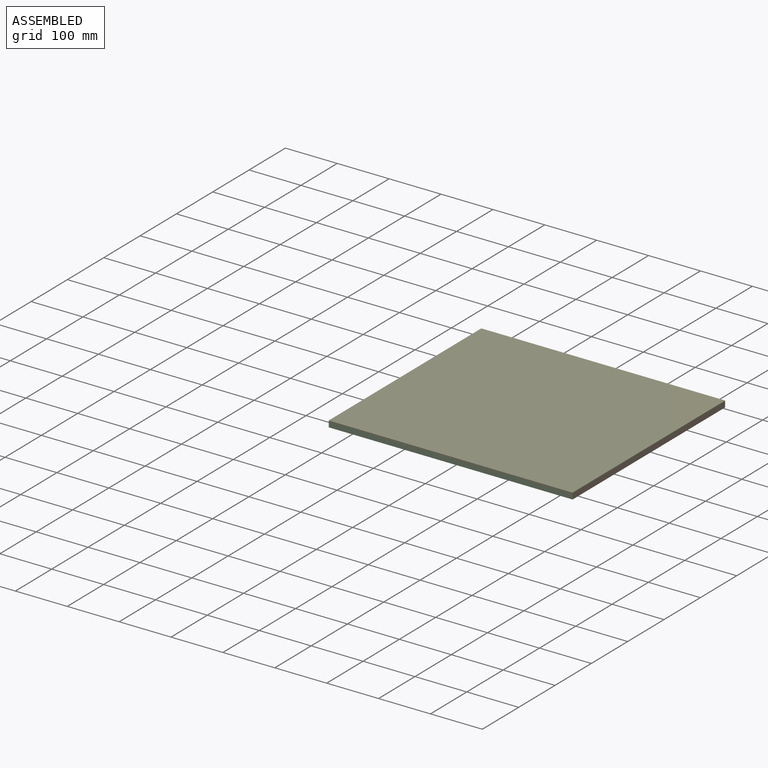
[diagram: assembled view]
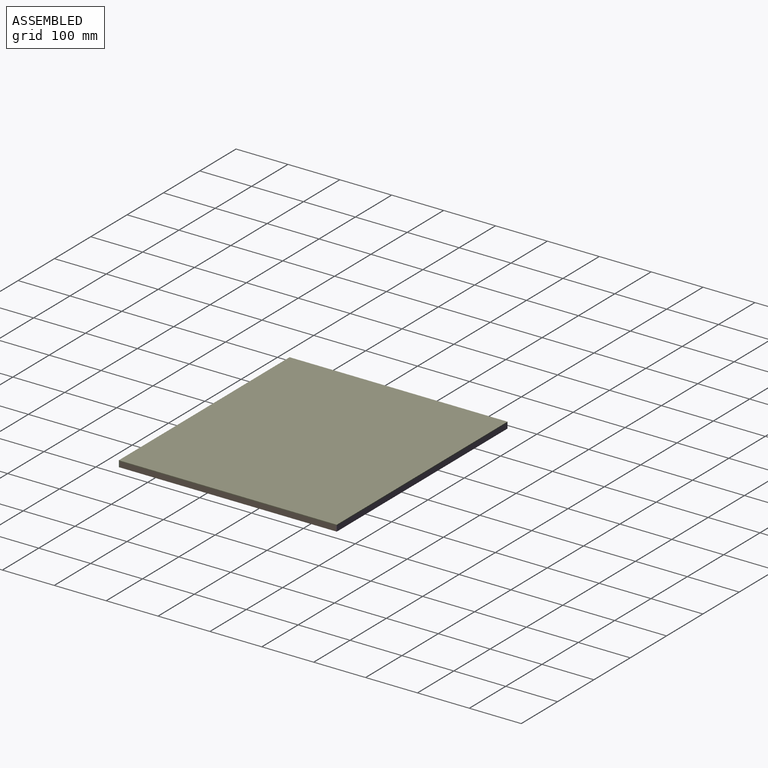
[diagram: assembled view, second angle]
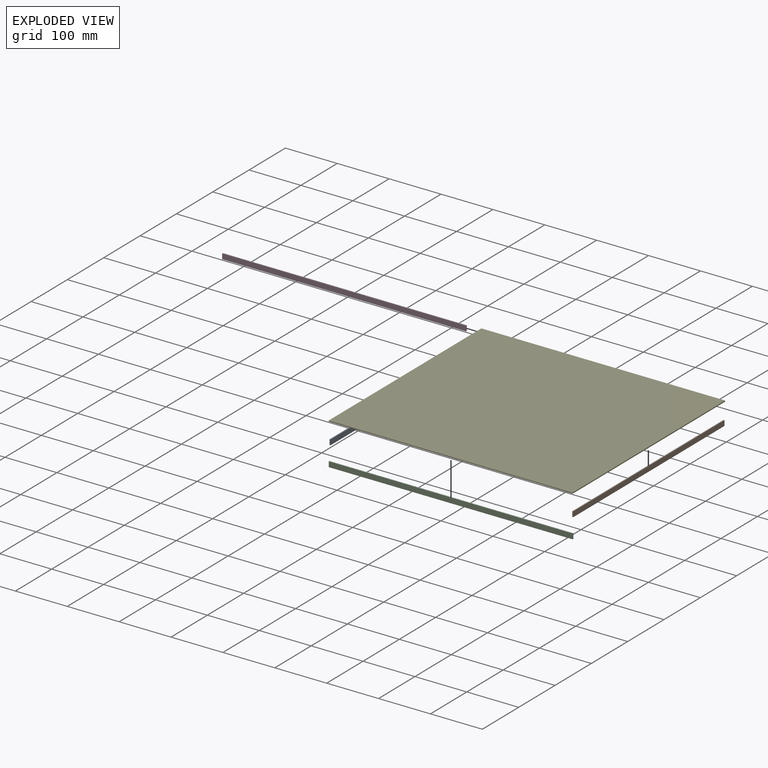
[diagram: exploded view]
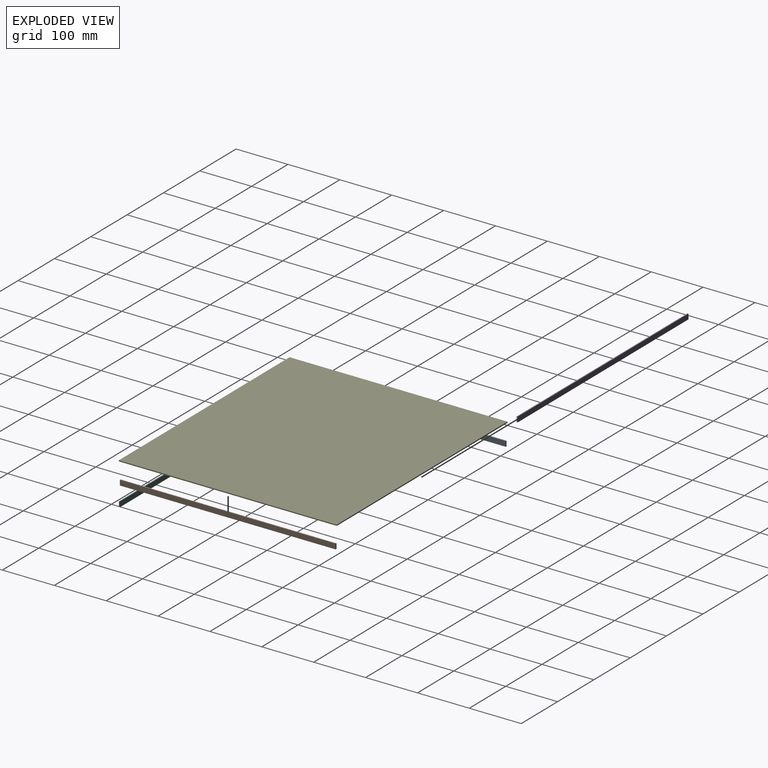
[diagram: exploded view, second angle]
ASSEMBLY  parts=5 mates=12
PART A: 6 faces, bbox 416x2x10 mm
  f0: plane 10x2mm, normal (-1,0,0), area 20mm2, adj f1,f3,f4,f5
  f1: plane 416x2mm, normal (0,0,-1), area 832mm2, adj f0,f2,f4,f5
  f2: plane 10x2mm, normal (1,0,0), area 20mm2, adj f1,f3,f4,f5
  f3: plane 416x2mm, normal (0,0,1), area 832mm2, adj f0,f2,f4,f5
  f4: plane 416x10mm, normal (0,-1,0), area 4160mm2, adj f0,f1,f2,f3
  f5: plane 416x10mm, normal (0,1,0), area 4160mm2, adj f0,f1,f2,f3
PART B: same geometry as A
PART C: 6 faces, bbox 470x2x10 mm
  f0: plane 10x2mm, normal (-1,0,0), area 20mm2, adj f1,f3,f4,f5
  f1: plane 470x2mm, normal (0,0,-1), area 940mm2, adj f0,f2,f4,f5
  f2: plane 10x2mm, normal (1,0,0), area 20mm2, adj f1,f3,f4,f5
  f3: plane 470x2mm, normal (0,0,1), area 940mm2, adj f0,f2,f4,f5
  f4: plane 470x10mm, normal (0,-1,0), area 4700mm2, adj f0,f1,f2,f3
  f5: plane 470x10mm, normal (0,1,0), area 4700mm2, adj f0,f1,f2,f3
PART D: same geometry as C
PART E: 6 faces, bbox 420x2x470 mm
  f0: plane 420x2mm, normal (0,0,1), area 840mm2, adj f1,f3,f4,f5
  f1: plane 470x2mm, normal (-1,0,0), area 940mm2, adj f0,f2,f4,f5
  f2: plane 420x2mm, normal (0,0,-1), area 840mm2, adj f1,f3,f4,f5
  f3: plane 470x2mm, normal (1,0,0), area 940mm2, adj f0,f2,f4,f5
  f4: plane 470x420mm, normal (0,-1,0), area 197400mm2, adj f0,f1,f2,f3
  f5: plane 470x420mm, normal (0,1,0), area 197400mm2, adj f0,f1,f2,f3
PLACE A rot(axis=(0,0,-1),90deg) t=(-238.65,-55.01,-21.72)mm
PLACE B rot(axis=(0.71,-0.71,0),180deg) t=(227.35,-55.01,-21.72)mm
PLACE C t=(-5.65,-263.01,-21.72)mm
PLACE D t=(-5.65,154.99,-21.72)mm
PLACE E rot(axis=(0.58,0.58,0.58),120deg) t=(-5.65,-55.01,-14.72)mm
MATE planar A.f3 <-> E.f4  axis (0,0,1) through (-239.65,-55.01,-16.72)mm
MATE planar B.f1 <-> E.f4  axis (0,0,1) through (228.35,-55.01,-16.72)mm
MATE planar E.f0 <-> B.f4  axis (1,0,0) through (229.35,-55.01,-15.72)mm
MATE planar B.f0 <-> D.f4  axis (0,1,0) through (228.35,152.99,-21.72)mm
MATE planar E.f4 <-> C.f3  axis (0,0,-1) through (-5.65,-55.01,-16.72)mm
MATE planar E.f2 <-> A.f4  axis (-1,0,0) through (-240.65,-55.01,-15.72)mm
MATE planar D.f2 <-> E.f0  axis (1,0,0) through (229.35,152.99,-21.72)mm
MATE planar C.f2 <-> E.f0  axis (1,0,0) through (229.35,-263.01,-21.72)mm
MATE planar A.f2 <-> C.f5  axis (0,-1,0) through (-240.65,-263.01,-21.72)mm
MATE planar E.f4 <-> D.f3  axis (0,0,-1) through (-5.65,-55.01,-16.72)mm
MATE planar D.f5 <-> E.f3  axis (0,1,0) through (-5.65,154.99,-21.72)mm
MATE planar C.f4 <-> E.f1  axis (0,-1,0) through (-5.65,-265.01,-21.72)mm
